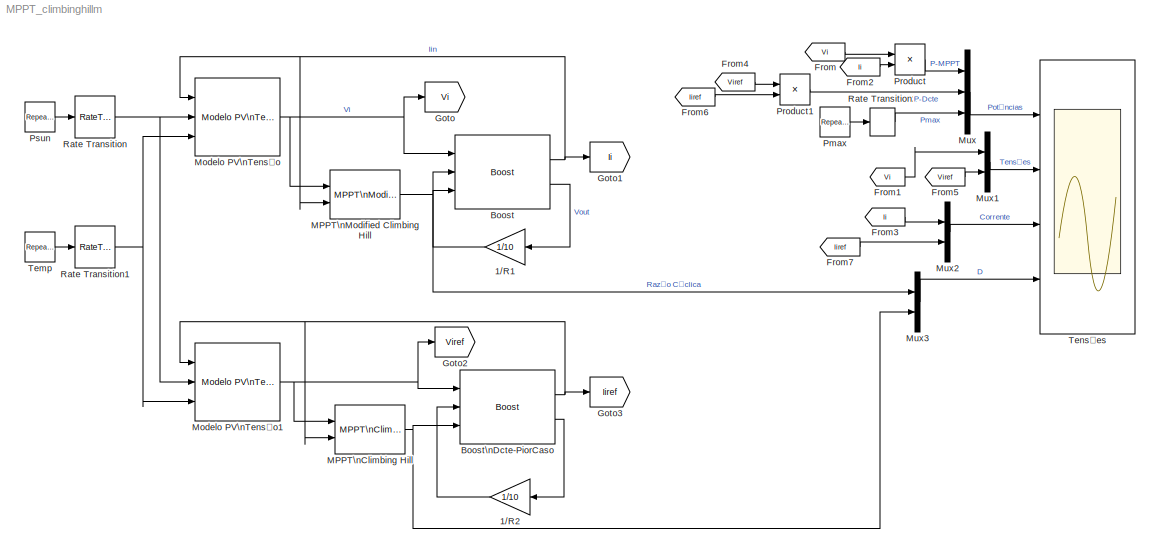
MODEL MPPT_climbinghillm
KIND model
CONFIG InitFcn = % Ponto de linearização\nD = 0.5;\nL = 0.1;\nC = 0.01;\nR = 10;\nVo = 24;\nLeq = L/(1-D)^2;\nN = 1/(1-D);
BLOCK [Gain] 1//R1
  Gain = 1/10
  OutDataTypeStr = Inherit: Inherit via internal rule
  ParamDataTypeStr = Inherit: Inherit via internal rule
  SID = 1
  SaturateOnIntegerOverflow = off
BLOCK [Gain] 1//R2
  Gain = 1/10
  OutDataTypeStr = Inherit: Inherit via internal rule
  ParamDataTypeStr = Inherit: Inherit via internal rule
  SID = 62
  SaturateOnIntegerOverflow = off
BLOCK [Reference] Boost  REF=AvgModels/Conversores\nEletrônicos de Potência/Boost
  C = 0.01
  Edit_carga = 24
  Fs = 20000
  Iini = 0
  L = 0.1
  Ports = [3, 2]
  RL = 0
  Rdon = 0
  Rdson = 0
  SID = 59
  SourceBlock = AvgModels/Conversores\nEletrônicos de Potência/Boost
  SourceType = Boost
  Vdon = 0.7
  Vini = 0
  Vson = 0
BLOCK [Reference] Boost\nDcte-PiorCaso  REF=AvgModels/Conversores\nEletrônicos de Potência/Boost
  C = 0.01
  Edit_carga = 24
  Fs = 20000
  Iini = 0
  L = 0.1
  Ports = [3, 2]
  RL = 0
  Rdon = 0
  Rdson = 0
  SID = 61
  SourceBlock = AvgModels/Conversores\nEletrônicos de Potência/Boost
  SourceType = Boost
  Vdon = 0.7
  Vini = 0
  Vson = 0
BLOCK [From] From
  GotoTag = Vi
  SID = 69
BLOCK [From] From1
  GotoTag = Vi
  SID = 70
BLOCK [From] From2
  GotoTag = Ii
  SID = 72
BLOCK [From] From3
  GotoTag = Ii
  SID = 73
BLOCK [From] From4
  GotoTag = Viref
  SID = 78
BLOCK [From] From5
  GotoTag = Viref
  SID = 79
BLOCK [From] From6
  GotoTag = Iiref
  SID = 81
BLOCK [From] From7
  GotoTag = Iiref
  SID = 82
BLOCK [Goto] Goto
  GotoTag = Vi
  SID = 68
BLOCK [Goto] Goto1
  GotoTag = Ii
  SID = 71
BLOCK [Goto] Goto2
  GotoTag = Viref
  SID = 76
BLOCK [Goto] Goto3
  GotoTag = Iiref
  SID = 77
BLOCK [Reference] MPPT\nClimbing Hill  REF=AvgModels/MPPT/MPPT\nClimbing Hill
  Passo = 3
  Ports = [2, 1]
  SID = 84
  SourceBlock = AvgModels/MPPT/MPPT\nClimbing Hill
  SourceType = MPPT Hill Climbing
  fb = 628
  liminf = 0
  limsup = 0.95
BLOCK [Reference] MPPT\nModified Climbing Hill  REF=AvgModels/MPPT/MPPT\nModified Climbing Hill
  Escala = 0.01
  Passomax = 10
  Passomin = 0.001
  Ports = [2, 1]
  SID = 83
  SourceBlock = AvgModels/MPPT/MPPT\nModified Climbing Hill
  SourceType = MPPT Modified Hill Climbing
  fb = 628
  liminf = 0
  limsup = 0.95
BLOCK [Reference] Modelo PV\nTensão  REF=AvgModels/Modelo PV\nTensão
  EG = 1.1
  Isc = 8.21
  Mp = 1
  Ms = 1
  Ns = 54
  Ports = [3, 1]
  Rp = 7
  Rs = 0.005
  SID = 54
  SourceBlock = AvgModels/Modelo PV\nTensão
  SourceType = Modelo PV de tensão
  Tr = 273 + 25
  Voc = 0.6093
  a = 3.18e-3
  k = 1.38e-23
  n = 1.2
  q = 1.60e-19
BLOCK [Reference] Modelo PV\nTensão1  REF=AvgModels/Modelo PV\nTensão
  EG = 1.1
  Isc = 8.21
  Mp = 1
  Ms = 1
  Ns = 54
  Ports = [3, 1]
  Rp = 7
  Rs = 0.005
  SID = 65
  SourceBlock = AvgModels/Modelo PV\nTensão
  SourceType = Modelo PV de tensão
  Tr = 273 + 25
  Voc = 0.6093
  a = 3.18e-3
  k = 1.38e-23
  n = 1.2
  q = 1.60e-19
BLOCK [Mux] Mux
  DisplayOption = bar
  Inputs = 3
  Ports = [3, 1]
  SID = 41
BLOCK [Mux] Mux1
  DisplayOption = bar
  Inputs = 2
  Ports = [2, 1]
  SID = 66
BLOCK [Mux] Mux2
  DisplayOption = bar
  Inputs = 2
  Ports = [2, 1]
  SID = 67
BLOCK [Mux] Mux3
  DisplayOption = bar
  Inputs = 2
  Ports = [2, 1]
  SID = 74
BLOCK [Reference] Pmax  REF=simulink/Sources/Repeating\nSequence\nStair
  ConRadixGroup = Best Precision: Vector-wise
  LockScale = off
  OutDataType = fixdt(0,8)
  OutDataTypeStr = double
  OutMax = []
  OutMin = []
  OutScaling = 2^-12
  OutValues = [98.6721 187.4175  98.6721].'
  OutputDataTypeScalingMode = double
  Ports = [0, 1]
  SID = 53
  SourceBlock = simulink/Sources/Repeating\nSequence\nStair
  SourceType = Repeating Sequence Stair
  tsamp = 2
BLOCK [Product] Product
  InputSameDT = off
  OutDataTypeStr = Inherit: Inherit via internal rule
  Ports = [2, 1]
  SID = 43
  SaturateOnIntegerOverflow = off
BLOCK [Product] Product1
  InputSameDT = off
  OutDataTypeStr = Inherit: Inherit via internal rule
  Ports = [2, 1]
  SID = 63
  SaturateOnIntegerOverflow = off
BLOCK [Reference] Psun  REF=simulink/Sources/Repeating\nSequence\nStair
  ConRadixGroup = Best Precision: Vector-wise
  LockScale = off
  OutDataType = fixdt(0,8)
  OutDataTypeStr = double
  OutMax = []
  OutMin = []
  OutScaling = 2^-12
  OutValues = [500 1000 500].'
  OutputDataTypeScalingMode = double
  Ports = [0, 1]
  SID = 50
  SourceBlock = simulink/Sources/Repeating\nSequence\nStair
  SourceType = Repeating Sequence Stair
  tsamp = 2
BLOCK [RateTransition] Rate Transition
  SID = 55
BLOCK [RateTransition] Rate Transition1
  SID = 56
BLOCK [RateTransition] Rate Transition2
  SID = 57
BLOCK [Reference] Temp  REF=simulink/Sources/Repeating\nSequence\nStair
  ConRadixGroup = Best Precision: Vector-wise
  LockScale = off
  OutDataType = fixdt(0,8)
  OutDataTypeStr = double
  OutMax = []
  OutMin = []
  OutScaling = 2^-12
  OutValues = [25 40 25].'
  OutputDataTypeScalingMode = double
  Ports = [0, 1]
  SID = 52
  SourceBlock = simulink/Sources/Repeating\nSequence\nStair
  SourceType = Repeating Sequence Stair
  tsamp = 2
BLOCK [Scope] Tensões
  DataFormat = StructureWithTime
  Floating = off
  LimitDataPoints = off
  NumInputPorts = 4
  Ports = [4]
  SID = 45
  SampleTime = 0
  SaveName = ScopeData1
  TimeRange = 8
  YMax = 200~40~8~0.5
  YMin = -50~0~-2~0
LINE 1//R1:1 -> Boost:2
LINE 1//R2:1 -> Boost\nDcte-PiorCaso:2
NET Boost:1 -> Goto1:1, MPPT\nModified Climbing Hill:2, Modelo PV\nTensão:1
LINE Boost:2 -> 1//R1:1
NET Boost\nDcte-PiorCaso:1 -> Goto3:1, MPPT\nClimbing Hill:2, Modelo PV\nTensão1:1
LINE Boost\nDcte-PiorCaso:2 -> 1//R2:1
LINE From1:1 -> Mux1:1
LINE From2:1 -> Product:2
LINE From3:1 -> Mux2:1
LINE From4:1 -> Product1:1
LINE From5:1 -> Mux1:2
LINE From6:1 -> Product1:2
LINE From7:1 -> Mux2:2
LINE From:1 -> Product:1
NET MPPT\nClimbing Hill:1 -> Boost\nDcte-PiorCaso:3, Mux3:2
NET MPPT\nModified Climbing Hill:1 -> Boost:3, Mux3:1
NET Modelo PV\nTensão1:1 -> Boost\nDcte-PiorCaso:1, Goto2:1, MPPT\nClimbing Hill:1
NET Modelo PV\nTensão:1 -> Boost:1, Goto:1, MPPT\nModified Climbing Hill:1
LINE Mux1:1 -> Tensões:2
LINE Mux2:1 -> Tensões:3
LINE Mux3:1 -> Tensões:4
LINE Mux:1 -> Tensões:1
LINE Pmax:1 -> Rate Transition2:1
LINE Product1:1 -> Mux:2
LINE Product:1 -> Mux:1
LINE Psun:1 -> Rate Transition:1
NET Rate Transition1:1 -> Modelo PV\nTensão1:3, Modelo PV\nTensão:3
LINE Rate Transition2:1 -> Mux:3
NET Rate Transition:1 -> Modelo PV\nTensão1:2, Modelo PV\nTensão:2
LINE Temp:1 -> Rate Transition1:1
note: NET lines group one-source signal fan-out (src -> all destinations, sorted); 1:1 wires keep LINE
